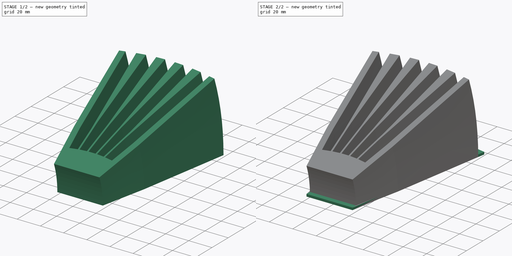
[diagram: build sequence overview — one tinted view per stage of 2, left to right]
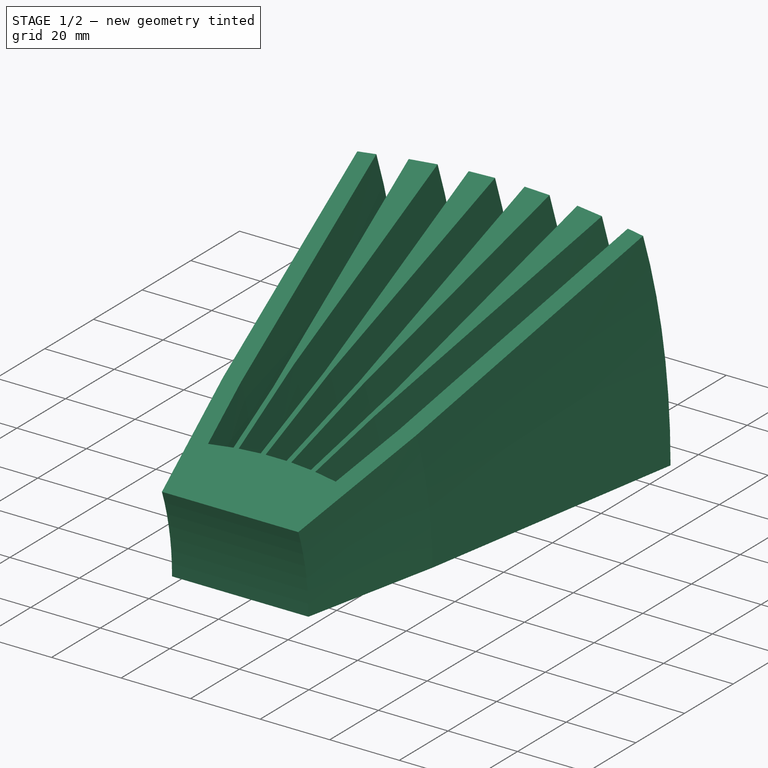
[diagram: stage 1 of 2 — iso view after this stage's code; geometry added in this stage tinted green]
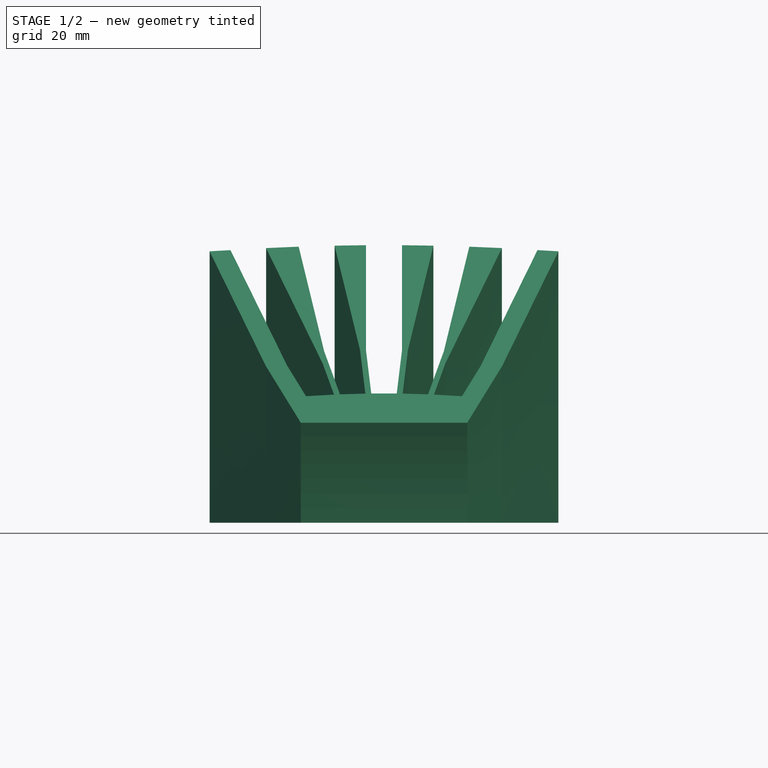
[diagram: stage 1 of 2 — front view after this stage's code; geometry added in this stage tinted green]
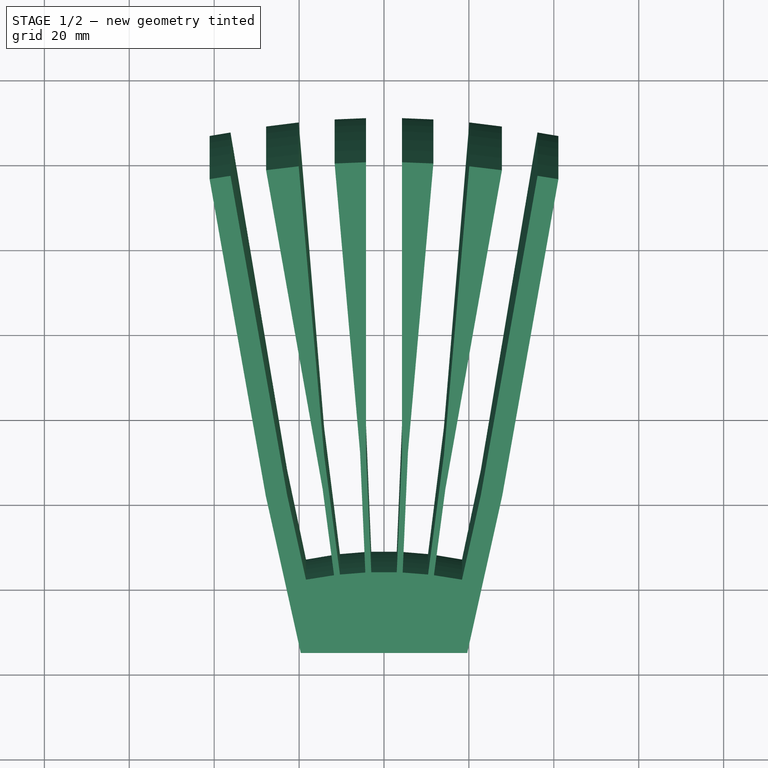
[diagram: stage 1 of 2 — top view after this stage's code; geometry added in this stage tinted green]
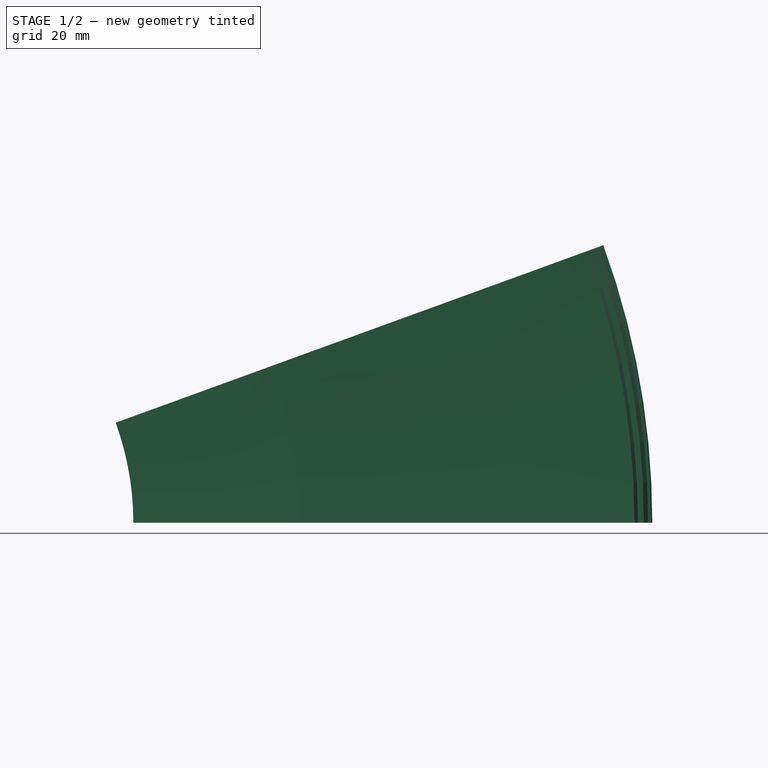
[diagram: stage 1 of 2 — right view after this stage's code; geometry added in this stage tinted green]
FCSTD DOCUMENT  (FreeCAD 0.19R24267 +99 (Git))
Label: ILS
License: All rights reserved
LicenseURL: http://en.wikipedia.org/wiki/All_rights_reserved
objects: Sketcher::SketchObject×2, PartDesign::Revolution×1, PartDesign::Pad×1, PartDesign::Body×1
note: 7 computed .brp shape members not serialized (recipe doc carries the construction recipe); baked Part::Feature solids carry a one-line shape summary decoded from their .brp

FEATURE [Sketcher::SketchObject] Sketch
  FullyConstrained = true
  MapMode = 5
  Support = -> [XY_Plane]
  sketch-geometry (67):
    g0: LineSegment StartX=0 StartY=0 StartZ=0 EndX=-3.7 EndY=89.022 EndZ=0
    g1: LineSegment StartX=0 StartY=0 StartZ=0 EndX=3.7 EndY=89.022 EndZ=0
    g2: LineSegment StartX=0 StartY=0 StartZ=0 EndX=11.0745 EndY=88.408 EndZ=0
    g3: LineSegment StartX=0 StartY=0 StartZ=0 EndX=-11.0745 EndY=88.408 EndZ=0
    g4: LineSegment StartX=0 StartY=0 StartZ=0 EndX=18.3726 EndY=87.1841 EndZ=0
    g5: LineSegment StartX=0 StartY=0 StartZ=0 EndX=-18.3726 EndY=87.1841 EndZ=0
    g6: LineSegment StartX=-18.3726 StartY=87.1841 StartZ=0 EndX=-11.0745 EndY=88.408 EndZ=0
    g7: LineSegment StartX=-11.0745 StartY=88.408 StartZ=0 EndX=-3.7 EndY=89.022 EndZ=0
    g8: LineSegment StartX=-3.7 StartY=89.022 StartZ=0 EndX=3.7 EndY=89.022 EndZ=0
    g9: LineSegment StartX=3.7 StartY=89.022 StartZ=0 EndX=11.0745 EndY=88.408 EndZ=0
    g10: LineSegment StartX=11.0745 StartY=88.408 StartZ=0 EndX=18.3726 EndY=87.1841 EndZ=0
    g11: LineSegment StartX=-18.3726 StartY=87.1841 StartZ=0 EndX=-22.824 EndY=108.308 EndZ=0
    g12: LineSegment StartX=-27.8543 StartY=108.072 StartZ=0 EndX=-19.6062 EndY=68.9318 EndZ=0
    g13: LineSegment StartX=-19.6062 StartY=68.9318 StartZ=0 EndX=19.6062 EndY=68.9318 EndZ=0
    g14: LineSegment StartX=19.6062 StartY=68.9318 StartZ=0 EndX=27.8543 EndY=108.072 EndZ=0
    g15: LineSegment StartX=22.824 StartY=108.308 StartZ=0 EndX=18.3726 EndY=87.1841 EndZ=0
    g16: GeomPoint X=-14.7235 Y=87.796 Z=0
    g17: LineSegment StartX=-11.7648 StartY=88.2922 StartZ=0 EndX=-14.448 EndY=109.712 EndZ=0
    g18: LineSegment StartX=-14.1057 StartY=118.233 StartZ=0 EndX=-10.3769 EndY=88.4661 EndZ=0
    g19: LineSegment StartX=-27.8543 StartY=108.072 StartZ=0 EndX=-41.0857 EndY=186.97 EndZ=0
    g20: LineSegment StartX=-41.0857 StartY=186.97 StartZ=0 EndX=-36.1545 EndY=187.797 EndZ=0
    g21: LineSegment StartX=-36.1545 StartY=187.797 StartZ=0 EndX=-22.824 EndY=108.308 EndZ=0
    g22: LineSegment StartX=-36.1545 StartY=187.797 StartZ=0 EndX=-14.7235 EndY=87.796 EndZ=0
    g23: LineSegment StartX=-14.448 StartY=109.712 StartZ=0 EndX=-27.7786 EndY=189.202 EndZ=0
    g24: LineSegment StartX=-27.7786 StartY=189.202 StartZ=0 EndX=-14.7235 EndY=87.796 EndZ=0
    g25: LineSegment StartX=-22.824 StartY=108.308 StartZ=0 EndX=-14.448 EndY=109.712 EndZ=0
    g26: LineSegment StartX=-36.1545 StartY=187.797 StartZ=0 EndX=-27.7786 EndY=189.202 EndZ=0
    g27: LineSegment StartX=-14.1057 StartY=118.233 StartZ=0 EndX=-20.0954 EndY=190.164 EndZ=0
    g28: GeomPoint X=-7.38724 Y=88.715 Z=0
    g29: LineSegment StartX=-4.39759 StartY=88.9639 StartZ=0 EndX=-5.64339 EndY=118.938 EndZ=0
    g30: LineSegment StartX=-5.64339 StartY=118.938 StartZ=0 EndX=-11.633 EndY=190.869 EndZ=0
    g31: LineSegment StartX=-14.1057 StartY=118.233 StartZ=0 EndX=-5.64339 EndY=118.938 EndZ=0
    g32: LineSegment StartX=-20.0954 StartY=190.164 StartZ=0 EndX=-11.633 EndY=190.869 EndZ=0
    g33: LineSegment StartX=-20.0954 StartY=190.164 StartZ=0 EndX=-7.38724 EndY=88.715 EndZ=0
    g34: LineSegment StartX=-11.633 StartY=190.869 StartZ=0 EndX=-7.38724 EndY=88.715 EndZ=0
    g35: LineSegment StartX=-27.7786 StartY=189.202 StartZ=0 EndX=-20.0954 EndY=190.164 EndZ=0
    g36: LineSegment StartX=-3 StartY=89.022 StartZ=0 EndX=-4.24581 EndY=118.996 EndZ=0
    g37: LineSegment StartX=-4.24581 StartY=118.996 StartZ=0 EndX=-4.24581 EndY=191.176 EndZ=0
    g38: LineSegment StartX=3 StartY=89.022 StartZ=0 EndX=4.24581 EndY=118.996 EndZ=0
    g39: LineSegment StartX=4.24581 StartY=118.996 StartZ=0 EndX=4.24581 EndY=191.176 EndZ=0
    g40: GeomPoint X=0 Y=89.022 Z=0
    g41: LineSegment StartX=-4.24581 StartY=191.176 StartZ=0 EndX=0 EndY=89.022 EndZ=0
    g42: LineSegment StartX=4.24581 StartY=191.176 StartZ=0 EndX=0 EndY=89.022 EndZ=0
    g43: LineSegment StartX=-4.24581 StartY=191.176 StartZ=0 EndX=4.24581 EndY=191.176 EndZ=0
    g44: LineSegment StartX=-4.24581 StartY=118.996 StartZ=0 EndX=4.24581 EndY=118.996 EndZ=0
    g45: LineSegment StartX=-11.633 StartY=190.869 StartZ=0 EndX=-4.24581 EndY=191.176 EndZ=0
    g46: LineSegment StartX=4.39759 StartY=88.9639 StartZ=0 EndX=5.64339 EndY=118.938 EndZ=0
    g47: LineSegment StartX=5.64339 StartY=118.938 StartZ=0 EndX=11.633 EndY=190.869 EndZ=0
    g48: LineSegment StartX=10.3769 StartY=88.4661 StartZ=0 EndX=14.1057 EndY=118.233 EndZ=0
    g49: LineSegment StartX=14.1057 StartY=118.233 StartZ=0 EndX=20.0954 EndY=190.164 EndZ=0
    g50: LineSegment StartX=11.7648 StartY=88.2922 StartZ=0 EndX=14.448 EndY=109.712 EndZ=0
    g51: LineSegment StartX=14.448 StartY=109.712 StartZ=0 EndX=27.7786 EndY=189.202 EndZ=0
    g52: LineSegment StartX=22.824 StartY=108.308 StartZ=0 EndX=36.1545 EndY=187.797 EndZ=0
    g53: LineSegment StartX=5.64339 StartY=118.938 StartZ=0 EndX=14.1057 EndY=118.233 EndZ=0
    g54: LineSegment StartX=11.633 StartY=190.869 StartZ=0 EndX=20.0954 EndY=190.164 EndZ=0
    g55: LineSegment StartX=14.448 StartY=109.712 StartZ=0 EndX=22.824 EndY=108.308 EndZ=0
    g56: LineSegment StartX=27.7786 StartY=189.202 StartZ=0 EndX=36.1545 EndY=187.797 EndZ=0
    g57: LineSegment StartX=4.24581 StartY=191.176 StartZ=0 EndX=11.633 EndY=190.869 EndZ=0
    g58: LineSegment StartX=20.0954 StartY=190.164 StartZ=0 EndX=27.7786 EndY=189.202 EndZ=0
    g59: LineSegment StartX=36.1545 StartY=187.797 StartZ=0 EndX=41.0857 EndY=186.97 EndZ=0
    g60: LineSegment StartX=27.8543 StartY=108.072 StartZ=0 EndX=41.0857 EndY=186.97 EndZ=0
    g61: LineSegment StartX=-18.3726 StartY=87.1841 StartZ=0 EndX=-11.7648 EndY=88.2922 EndZ=0
    g62: LineSegment StartX=-10.3769 StartY=88.4661 StartZ=0 EndX=-4.39759 EndY=88.9639 EndZ=0
    g63: LineSegment StartX=-3 StartY=89.022 StartZ=0 EndX=3 EndY=89.022 EndZ=0
    g64: LineSegment StartX=4.39759 StartY=88.9639 StartZ=0 EndX=10.3769 EndY=88.4661 EndZ=0
    g65: LineSegment StartX=11.7648 StartY=88.2922 StartZ=0 EndX=18.3726 EndY=87.1841 EndZ=0
    g66: LineSegment StartX=-11.7648 StartY=88.2922 StartZ=0 EndX=-10.3769 EndY=88.4661 EndZ=0
  constraints (172):
    c: Coincident(g0,g-1)
    c: Coincident(g1,g-1)
    c: Angle(g-2,g0) = 0.0415388
    c: Angle(g1,g-2) = 0.0415388
    c: Coincident(g2,g-1)
    c: Coincident(g3,g-1)
    c: Coincident(g4,g-1)
    c: Coincident(g5,g-1)
    c: Angle(g2,g1) = 0.0830777
    c: Angle(g4,g2) = 0.0830777
    c: Angle(g3,g5) = 0.0830777
    c: Angle(g0,g3) = 0.0830777
    c: Distance(g6) = 7.4
    c: Coincident(g5,g6)
    c: Coincident(g3,g6)
    c: Equal(g5,g3)
    c: Coincident(g7,g6)
    c: Coincident(g8,g7)
    c: Coincident(g9,g8)
    c: Coincident(g10,g9)
    c: Coincident(g0,g7)
    c: Coincident(g1,g8)
    c: Coincident(g2,g9)
    c: Coincident(g4,g10)
    c: Equal(g3,g0)
    c: Equal(g0,g1)
    c: Equal(g1,g2)
    c: Equal(g2,g4)
    c: Coincident(g12,g13)
    c: Horizontal(g13)
    c: Coincident(g13,g14)
    c: Coincident(g15,g10)
    c: Coincident(g11,g6)
    c: Parallel(g11,g5)
    c: Parallel(g15,g4)
    c: Parallel(g11,g12)
    c: Parallel(g15,g14)
    c: Symmetric(g6,g6,g16)
    c: PointOnObject(g17,g6)
    c: PointOnObject(g18,g7)
    c: Parallel(g17,g3)
    c: Parallel(g18,g3)
    c: Coincident(g19,g20)
    c: Coincident(g20,g21)
    c: Coincident(g21,g11)
    c: Perpendicular(g6,g21)
    c: Perpendicular(g6,g19)
    c: Coincident(g19,g12)
    c: Coincident(g22,g20)
    c: Coincident(g22,g16)
    c: Coincident(g23,g17)
    c: Perpendicular(g6,g23)
    c: Coincident(g24,g23)
    c: Coincident(g24,g16)
    c: Angle(g24,g22) = 0.0830777
    c: Distance(g6,g17) = 0.7
    c: Perpendicular(g21,g20)
    c: Coincident(g25,g11)
    c: Coincident(g25,g17)
    c: Parallel(g25,g6)
    c: Coincident(g26,g20)
    c: Coincident(g26,g23)
    c: Parallel(g26,g25)
    c: Coincident(g27,g18)
    c: Perpendicular(g7,g27)
    c: Distance(g6,g18) = 0.7
    c: PointOnObject(g28,g7)
    c: Parallel(g29,g0)
    c: Coincident(g30,g29)
    c: Perpendicular(g7,g30)
    c: Coincident(g31,g18)
    c: Coincident(g31,g29)
    c: Parallel(g31,g7)
    c: Coincident(g32,g27)
    c: Coincident(g32,g30)
    c: Parallel(g32,g31)
    c: Coincident(g33,g27)
    c: Coincident(g33,g28)
    c: Coincident(g34,g30)
    c: Coincident(g34,g28)
    c: Angle(g34,g33) = 0.0830777
    c: Symmetric(g18,g29,g28)
    c: Distance(g29,g8) = 0.7
    c: Coincident(g35,g23)
    c: Coincident(g35,g27)
    c: Distance(g20) = 5
    c: Distance(g19) = 80
    c: Distance(g29) = 30
    c: PointOnObject(g36,g8)
    c: Coincident(g36,g37)
    c: Vertical(g37)
    c: Parallel(g36,g0)
    c: PointOnObject(g38,g8)
    c: Coincident(g39,g38)
    c: Vertical(g39)
    c: Parallel(g38,g1)
    c: Distance(g0,g36) = 0.7
    c: Distance(g38,g9) = 0.7
    c: PointOnObject(g40,g-2)
    c: PointOnObject(g40,g8)
    c: Coincident(g41,g37)
    c: Coincident(g41,g40)
    c: Coincident(g42,g39)
    c: Coincident(g42,g40)
    c: Coincident(g43,g37)
    c: Coincident(g43,g39)
    c: Coincident(g44,g36)
    c: Coincident(g44,g38)
    c: Parallel(g44,g8)
    c: Parallel(g43,g8)
    c: Angle(g42,g41) = 0.0830777
    c: Equal(g29,g36)
    c: Coincident(g45,g30)
    c: Coincident(g45,g37)
    c: PointOnObject(g46,g9)
    c: Coincident(g46,g47)
    c: PointOnObject(g48,g9)
    c: Coincident(g48,g49)
    c: PointOnObject(g50,g10)
    c: Coincident(g50,g51)
    c: Distance(g9,g46) = 0.7
    c: Parallel(g46,g1)
    c: Parallel(g48,g2)
    c: Distance(g48,g10) = 0.7
    c: Distance(g50,g10) = 0.7
    c: Parallel(g50,g2)
    c: Perpendicular(g9,g47)
    c: Perpendicular(g9,g49)
    c: Perpendicular(g10,g51)
    c: Coincident(g52,g15)
    c: Perpendicular(g10,g52)
    c: Coincident(g46,g53)
    c: Coincident(g53,g48)
    c: Coincident(g47,g54)
    c: Coincident(g54,g49)
    c: Coincident(g50,g55)
    c: Coincident(g55,g15)
    c: Coincident(g51,g56)
    c: Coincident(g56,g52)
    c: Equal(g52,g21)
    c: Equal(g51,g23)
    c: Parallel(g56,g10)
    c: Equal(g50,g17)
    c: Parallel(g53,g9)
    c: Parallel(g54,g9)
    c: Equal(g46,g29)
    c: Equal(g47,g30)
    c: Coincident(g57,g39)
    c: Coincident(g57,g47)
    c: Coincident(g58,g49)
    c: Coincident(g58,g51)
    c: Coincident(g59,g52)
    c: Coincident(g60,g14)
    c: Coincident(g60,g59)
    c: Perpendicular(g60,g59)
    c: Equal(g20,g59)
    c: Equal(g60,g19)
    c: Perpendicular(g55,g60)
    c: Distance(g14) = 40
    c: Coincident(g61,g11)
    c: Coincident(g61,g17)
    c: Coincident(g62,g18)
    c: Coincident(g62,g29)
    c: Coincident(g63,g36)
    c: Coincident(g63,g38)
    c: Coincident(g64,g46)
    c: Coincident(g64,g48)
    c: Coincident(g65,g50)
    c: Coincident(g65,g15)
    c: Coincident(g66,g17)
    c: Coincident(g66,g18)
    c: Parallel(g66,g35)
FEATURE [PartDesign::Revolution] Revolution
  Angle = 20
  Axis = (1,0,0)
  Base = (0,0,0)
  Profile = -> Sketch
  ReferenceAxis = -> X_Axis
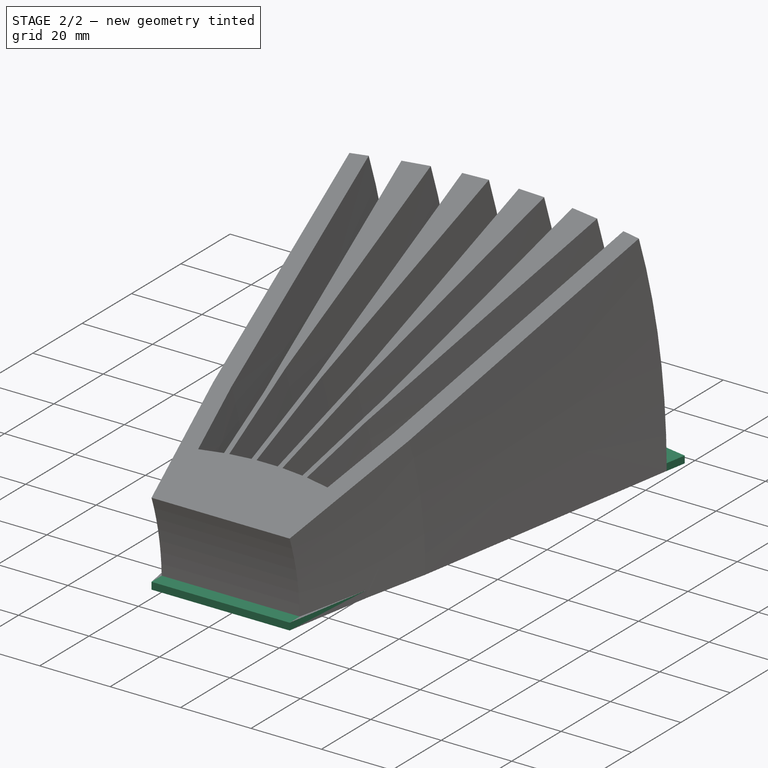
[diagram: stage 2 of 2 — iso view after this stage's code; geometry added in this stage tinted green]
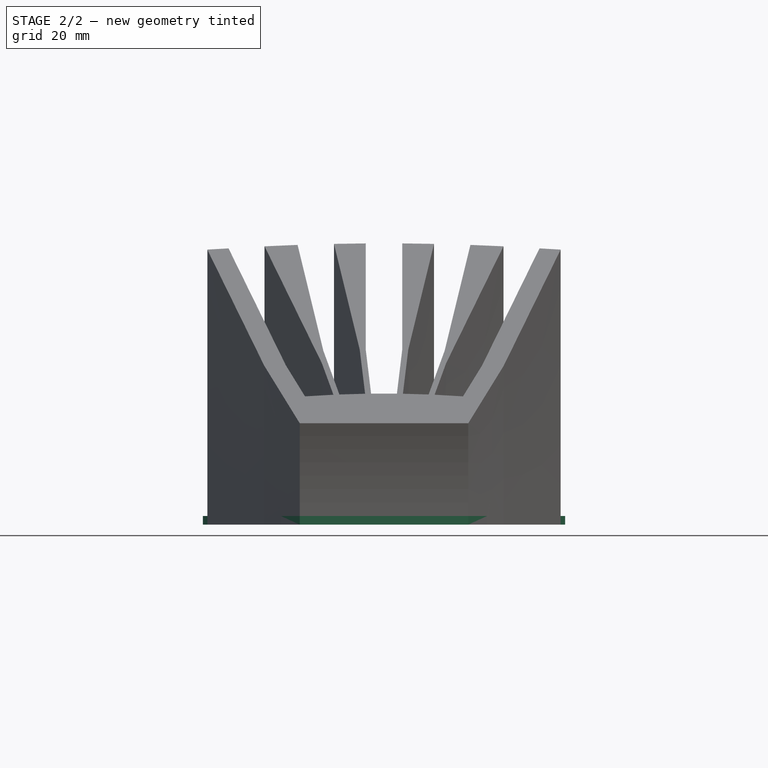
[diagram: stage 2 of 2 — front view after this stage's code; geometry added in this stage tinted green]
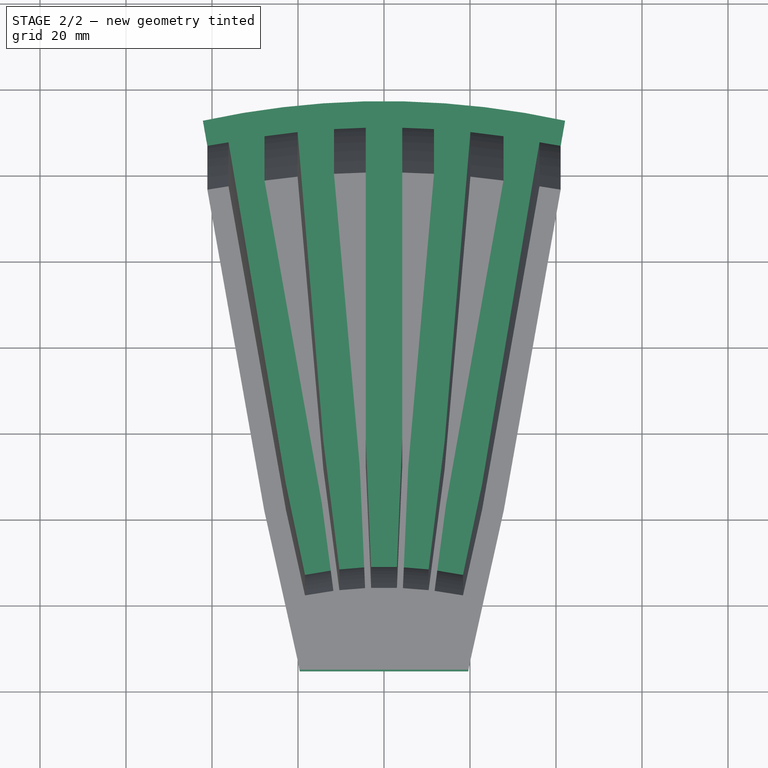
[diagram: stage 2 of 2 — top view after this stage's code; geometry added in this stage tinted green]
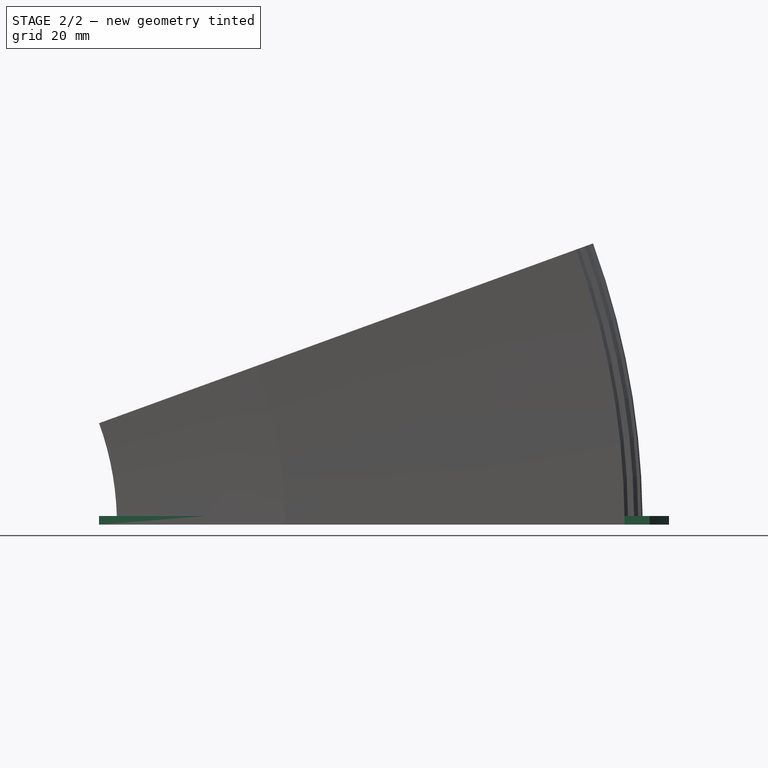
[diagram: stage 2 of 2 — right view after this stage's code; geometry added in this stage tinted green]
FEATURE [Sketcher::SketchObject] Sketch001
  ExternalGeometry = -> [Revolution]
  FullyConstrained = true
  MapMode = 5
  Support = -> [XY_Plane]
  sketch-geometry (4):
    g0: ArcOfCircle CenterX=0 CenterY=0 CenterZ=0 NormalX=0 NormalY=0 NormalZ=1 AngleXU=0 Radius=197.357 StartAngle=1.35576 EndAngle=1.78583
    g1: LineSegment StartX=-42.1125 StartY=192.812 StartZ=0 EndX=-19.6062 EndY=64.7747 EndZ=0
    g2: LineSegment StartX=19.6062 StartY=64.7747 StartZ=0 EndX=42.1125 EndY=192.812 EndZ=0
    g3: LineSegment StartX=-19.6062 StartY=64.7747 StartZ=0 EndX=19.6062 EndY=64.7747 EndZ=0
  constraints (10):
    c: Coincident(g0,g-1)
    c: Coincident(g1,g-3)
    c: Coincident(g2,g0)
    c: PointOnObject(g-5,g1)
    c: PointOnObject(g-4,g2)
    c: Coincident(g0,g1)
    c: Coincident(g-3,g2)
    c: Coincident(g3,g1)
    c: Coincident(g3,g2)
    c: Distance(g2) = 130
FEATURE [PartDesign::Pad] Pad
  BaseFeature = -> Revolution
  Direction = (1,1,1)
  Length = 2
  Length2 = 100
  Profile = -> Sketch001
  Type = 0
FEATURE [PartDesign::Body] Body
  Group = -> [Sketch,Revolution,Sketch001,Pad]
  Origin = -> Origin
  Tip = -> Pad
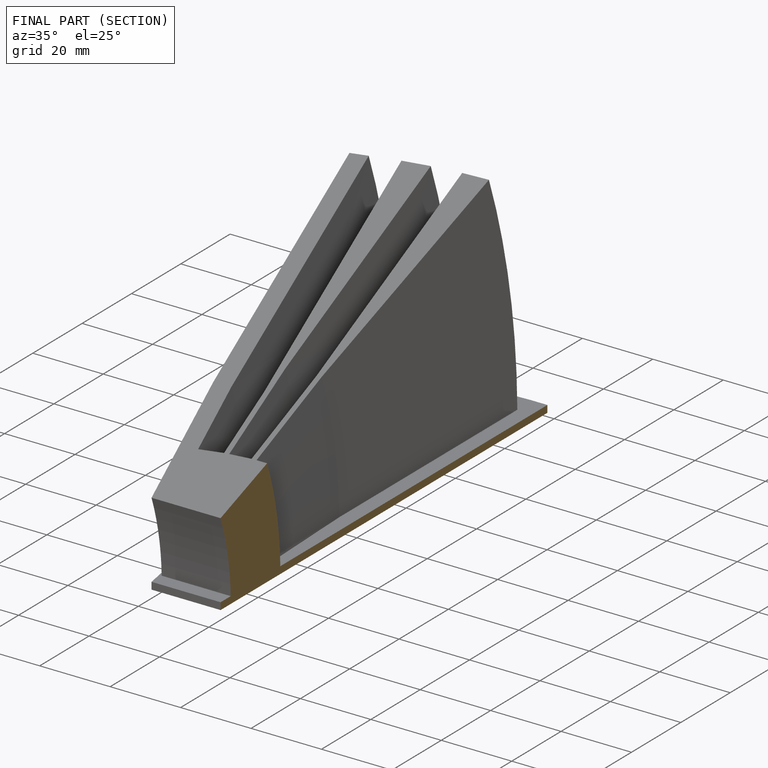
[diagram: finished part — half-section view (interior)]
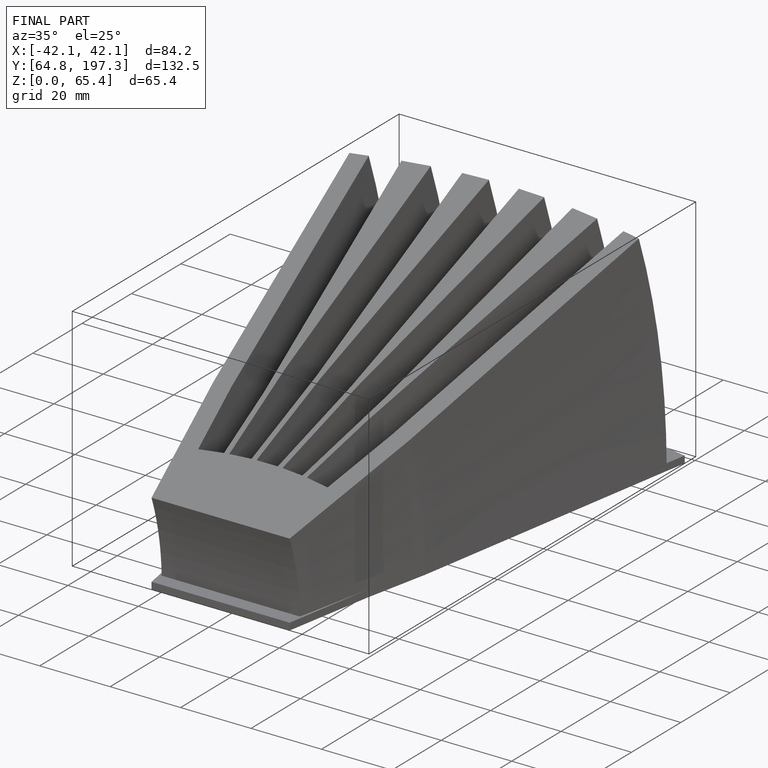
[diagram: finished part — iso view with bounding-box wireframe]
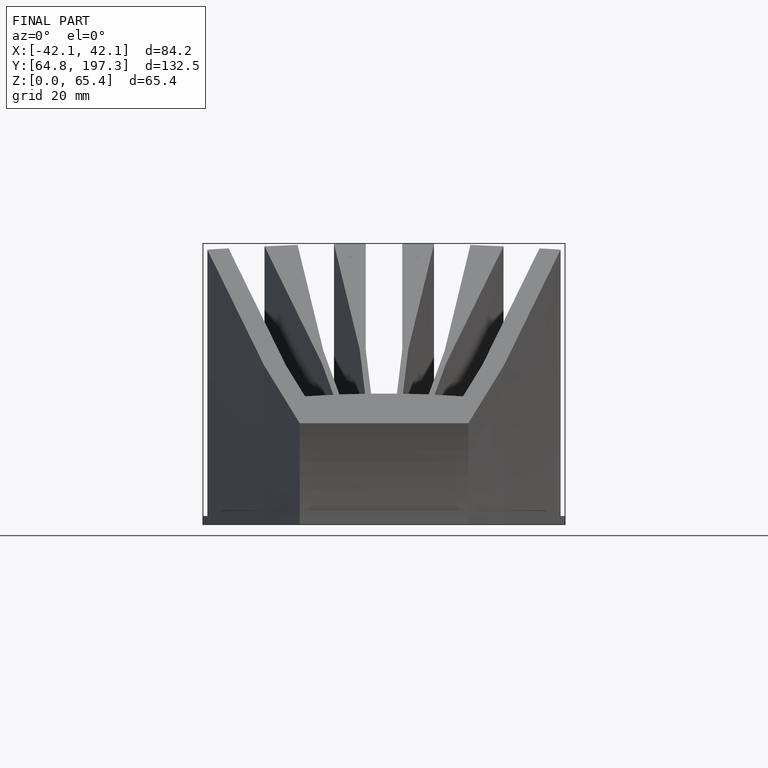
[diagram: finished part — front view with bounding-box wireframe]
